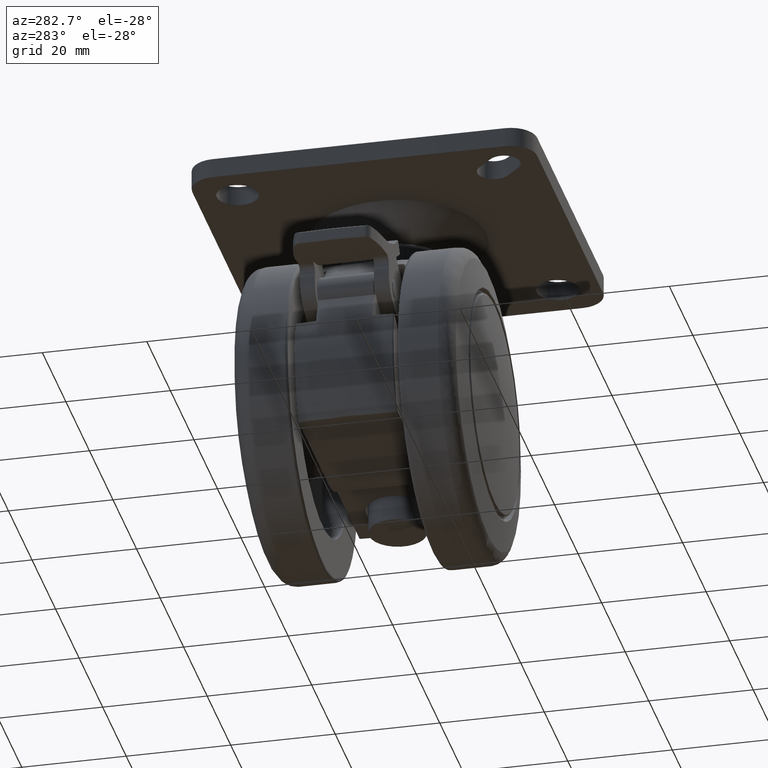
[diagram: clean part render]
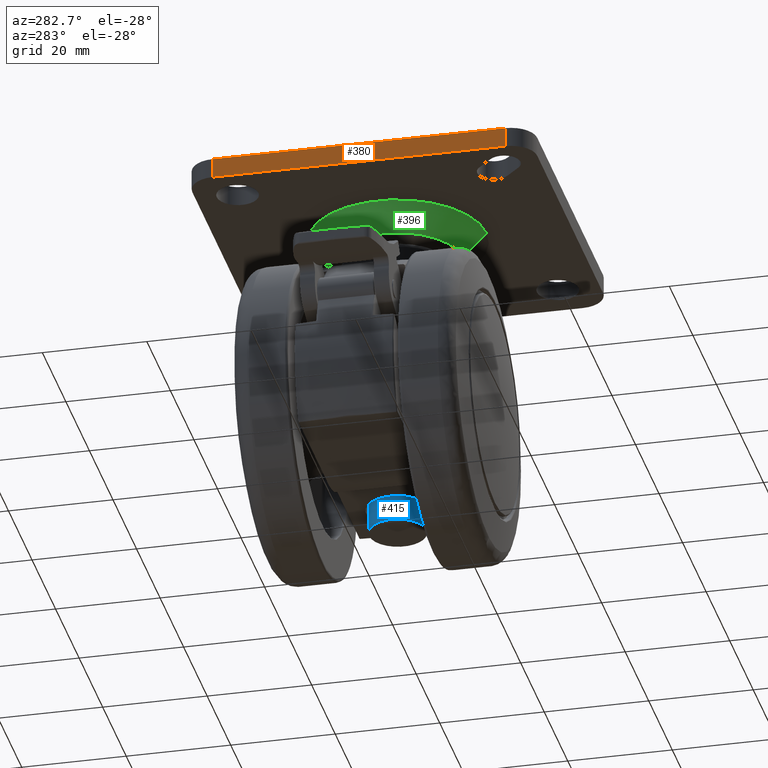
[diagram: same view with three faces highlighted in distinct colors, each labeled with its STEP entity id]
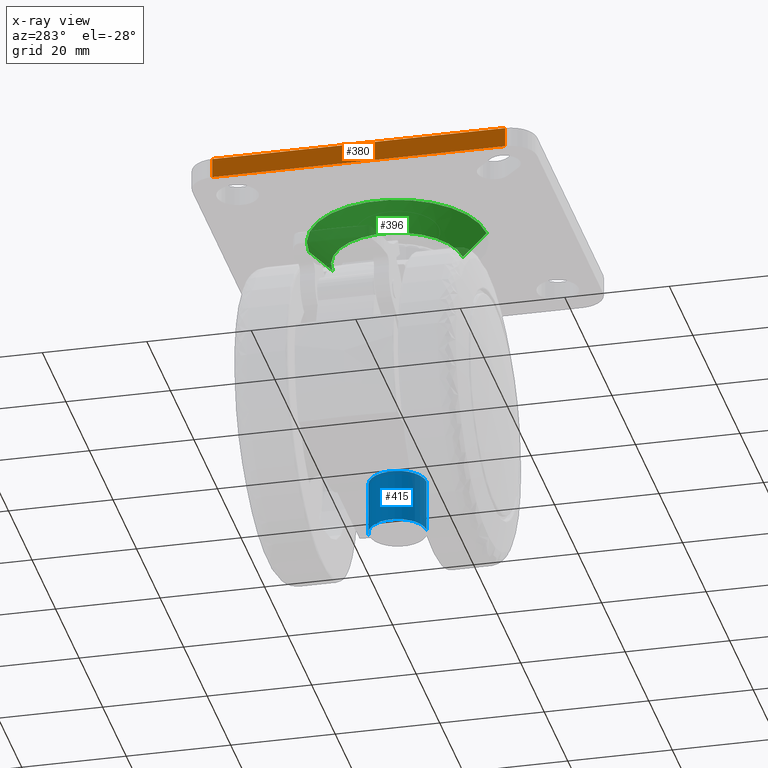
[diagram: x-ray of the same camera — body ghosted, the three highlighted faces saturated]
A machine part, auxiliary view with three faces highlighted in distinct colors.
The next image is the same camera in x-ray (body ghosted, the three faces saturated) — at least one of them is partly hidden behind the body in this view.
Their STEP definitions:

[orange] entity #380 — the highlighted planar face has unit normal (1, 0, 0).
#380=ADVANCED_FACE('',(#2306),#2305,.F.);
#2305=PLANE('',#6974);
#2306=FACE_OUTER_BOUND('',#6975,.T.);
#6971=CARTESIAN_POINT('',(-3.30000000000E+01,-3.80000000000E-01,3.36000000000E+01));
#6972=DIRECTION('',(1.00000000000E+00,-3.30514048027E-30,7.88931209923E-16));
#6973=DIRECTION('',(7.88931209923E-16,2.80045621353E-29,-1.00000000000E+00));
#6974=AXIS2_PLACEMENT_3D('',#6971,#6972,#6973);
#6975=EDGE_LOOP('',(#8307,#8308,#8309,#8310));
#8307=ORIENTED_EDGE('',*,*,#8929,.F.);
#8308=ORIENTED_EDGE('',*,*,#8949,.T.);
#8309=ORIENTED_EDGE('',*,*,#8911,.T.);
#8310=ORIENTED_EDGE('',*,*,#8950,.T.);
#8911=EDGE_CURVE('',#11928,#11921,#11929,.T.);
#8929=EDGE_CURVE('',#12047,#12054,#12055,.T.);
#8949=EDGE_CURVE('',#12047,#11928,#12189,.T.);
#8950=EDGE_CURVE('',#11921,#12054,#12195,.T.);
#11921=VERTEX_POINT('',#14942);
#11928=VERTEX_POINT('',#14947);
#11929=LINE('',#14948,#14949);
#12047=VERTEX_POINT('',#15027);
#12054=VERTEX_POINT('',#15032);
#12055=LINE('',#15033,#15034);
#12189=LINE('',#15119,#15120);
#12195=LINE('',#15122,#15123);
#14942=CARTESIAN_POINT('',(-3.30000000000E+01,0.00000000000E+00,2.80000000000E+01));
#14947=CARTESIAN_POINT('',(-3.30000000000E+01,0.00000000000E+00,-2.80000000000E+01));
#14948=CARTESIAN_POINT('',(-3.30000000000E+01,0.00000000000E+00,-2.80000000000E+01));
#14949=VECTOR('',#14950,5.60000000000E+01);
#14950=DIRECTION('',(2.53765262771E-16,0.00000000000E+00,1.00000000000E+00));
#15027=CARTESIAN_POINT('',(-3.30000000000E+01,3.80000000000E+00,-2.80000000000E+01));
#15032=CARTESIAN_POINT('',(-3.30000000000E+01,3.80000000000E+00,2.80000000000E+01));
#15033=CARTESIAN_POINT('',(-3.30000000000E+01,3.80000000000E+00,-2.80000000000E+01));
#15034=VECTOR('',#15035,5.60000000000E+01);
#15035=DIRECTION('',(2.53765262771E-16,0.00000000000E+00,1.00000000000E+00));
#15119=CARTESIAN_POINT('',(-3.30000000000E+01,3.80000000000E+00,-2.80000000000E+01));
#15120=VECTOR('',#15121,3.80000000000E+00);
#15121=DIRECTION('',(0.00000000000E+00,-1.00000000000E+00,1.12190958278E-14));
#15122=CARTESIAN_POINT('',(-3.30000000000E+01,0.00000000000E+00,2.80000000000E+01));
#15123=VECTOR('',#15124,3.80000000000E+00);
#15124=DIRECTION('',(0.00000000000E+00,1.00000000000E+00,-2.24381916556E-14));

[blue] entity #415 — the highlighted cylindrical surface (edge-blend (fillet) strip) has radius 5.5 mm, axis along (-0, -0, -1).
#415=ADVANCED_FACE('',(#2656),#2655,.T.);
#2655=CYLINDRICAL_SURFACE('',#7355,5.50000000000E+00);
#2656=FACE_OUTER_BOUND('',#7356,.T.);
#7352=CARTESIAN_POINT('',(-7.20214039754E-27,6.00999984741E+01,2.11055728315E-13));
#7353=DIRECTION('',(-6.79383115546E-30,1.00000000000E+00,3.49148133884E-15));
#7354=DIRECTION('',(-9.99200722163E-16,-3.49148133884E-15,1.00000000000E+00));
#7355=AXIS2_PLACEMENT_3D('',#7352,#7353,#7354);
#7356=EDGE_LOOP('',(#8443,#8444,#8445,#8446));
#8443=ORIENTED_EDGE('',*,*,#8998,.F.);
#8444=ORIENTED_EDGE('',*,*,#8995,.T.);
#8445=ORIENTED_EDGE('',*,*,#8960,.T.);
#8446=ORIENTED_EDGE('',*,*,#8997,.F.);
#8960=EDGE_CURVE('',#12252,#12251,#12259,.T.);
#8995=EDGE_CURVE('',#12481,#12252,#12482,.T.);
#8997=EDGE_CURVE('',#12488,#12251,#12495,.T.);
#8998=EDGE_CURVE('',#12481,#12488,#12501,.T.);
#12251=VERTEX_POINT('',#15153);
#12252=VERTEX_POINT('',#15154);
#12259=CIRCLE('',#15162,5.50000000000E+00);
#12481=VERTEX_POINT('',#15285);
#12482=(BOUNDED_CURVE() B_SPLINE_CURVE(1,(#15286,#15287),.UNSPECIFIED.,.F.,.F.) B_SPLINE_CURVE_WITH_KNOTS((2,2),(8.33333343261E-02,9.16666667006E-01),.UNSPECIFIED.) CURVE() GEOMETRIC_REPRESENTATION_ITEM() RATIONAL_B_SPLINE_CURVE((1.00000000000E+00,1.00000000000E+00)) REPRESENTATION_ITEM('') );
#12488=VERTEX_POINT('',#15288);
#12495=(BOUNDED_CURVE() B_SPLINE_CURVE(1,(#15293,#15294),.UNSPECIFIED.,.F.,.F.) B_SPLINE_CURVE_WITH_KNOTS((2,2),(8.33333333333E-02,9.16666666667E-01),.UNSPECIFIED.) CURVE() GEOMETRIC_REPRESENTATION_ITEM() RATIONAL_B_SPLINE_CURVE((7.50000000000E-01,7.50000000000E-01)) REPRESENTATION_ITEM('') );
#12501=CIRCLE('',#15298,5.50000000000E+00);
#15153=CARTESIAN_POINT('',(5.62512999143E-15,6.52000000000E+01,-5.50000000000E+00));
#15154=CARTESIAN_POINT('',(-4.82207047729E-15,6.52000000000E+01,5.50000000000E+00));
#15159=CARTESIAN_POINT('',(0.00000000000E+00,6.52000000000E+01,2.28983498829E-13));
#15160=DIRECTION('',(5.88686707918E-30,-1.00000000000E+00,-2.58379176640E-15));
#15161=DIRECTION('',(-9.99200722163E-16,-2.58379176640E-15,1.00000000000E+00));
#15162=AXIS2_PLACEMENT_3D('',#15159,#15160,#15161);
#15285=CARTESIAN_POINT('',(-5.03301104497E-15,5.50000000000E+01,5.50000000000E+00));
#15286=CARTESIAN_POINT('',(-5.49560397190E-15,5.50000000122E+01,5.50000000000E+00));
#15287=CARTESIAN_POINT('',(-5.49560397190E-15,6.52000000042E+01,5.50000000000E+00));
#15288=CARTESIAN_POINT('',(5.49560397189E-15,5.50000000000E+01,-5.50000000000E+00));
#15293=CARTESIAN_POINT('',(5.32907051820E-15,5.50000000000E+01,-5.50000000000E+00));
#15294=CARTESIAN_POINT('',(5.32907051820E-15,6.52000000000E+01,-5.50000000000E+00));
#15295=CARTESIAN_POINT('',(0.00000000000E+00,5.50000000000E+01,2.15105711021E-13));
#15296=DIRECTION('',(7.17773037863E-30,-1.00000000000E+00,-3.87568764960E-15));
#15297=DIRECTION('',(8.76740086780E-16,3.87568764960E-15,-1.00000000000E+00));
#15298=AXIS2_PLACEMENT_3D('',#15295,#15296,#15297);

[green] entity #396 — the highlighted face is a freeform B-spline surface patch.
#396=ADVANCED_FACE('',(#2466),#2465,.T.);
#2465=( BOUNDED_SURFACE() B_SPLINE_SURFACE( 2,1,((#7105,#7106),(#7107,#7108),(#7109,#7110),(#7111,#7112),(#7113,#7114)), .UNSPECIFIED.,.F.,.F.,.F.) B_SPLINE_SURFACE_WITH_KNOTS((3,2,3),(2,2),(0.00000000000E+00,5.00000000000E-01,1.00000000000E+00),(0.00000000000E+00,1.00000000000E+00), .UNSPECIFIED. ) GEOMETRIC_REPRESENTATION_ITEM() RATIONAL_B_SPLINE_SURFACE(((1.00000000000E+00,1.00000000000E+00),(7.07106781187E-01,7.07106781187E-01),(1.00000000000E+00,1.00000000000E+00),(7.07106781187E-01,7.07106781187E-01),(1.00000000000E+00,1.00000000000E+00))) REPRESENTATION_ITEM('') SURFACE() );
#2466=FACE_OUTER_BOUND('',#7115,.T.);
#7105=CARTESIAN_POINT('',(-1.54944095797E-14,8.34598911806E+00,1.24540108819E+01));
#7106=CARTESIAN_POINT('',(-2.11502113939E-14,3.80000000000E+00,1.70000000000E+01));
#7107=CARTESIAN_POINT('',(-1.24540108819E+01,8.34598911806E+00,1.24540108819E+01));
#7108=CARTESIAN_POINT('',(-1.70000000000E+01,3.80000000000E+00,1.70000000000E+01));
#7109=CARTESIAN_POINT('',(-1.24540108819E+01,8.34598911806E+00,1.50182026286E-14));
#7110=CARTESIAN_POINT('',(-1.70000000000E+01,3.80000000000E+00,-6.23147380678E-15));
#7111=CARTESIAN_POINT('',(-1.24540108819E+01,8.34598911806E+00,-1.24540108819E+01));
#7112=CARTESIAN_POINT('',(-1.70000000000E+01,3.80000000000E+00,-1.70000000000E+01));
#7113=CARTESIAN_POINT('',(1.39692331234E-14,8.34598911806E+00,-1.24540108819E+01));
#7114=CARTESIAN_POINT('',(1.90683118353E-14,3.80000000000E+00,-1.70000000000E+01));
#7115=EDGE_LOOP('',(#8367,#8368,#8369,#8370));
#8367=ORIENTED_EDGE('',*,*,#8944,.T.);
#8368=ORIENTED_EDGE('',*,*,#8967,.F.);
#8369=ORIENTED_EDGE('',*,*,#8968,.T.);
#8370=ORIENTED_EDGE('',*,*,#8969,.T.);
#8944=EDGE_CURVE('',#12152,#12151,#12159,.T.);
#8967=EDGE_CURVE('',#12303,#12151,#12304,.T.);
#8968=EDGE_CURVE('',#12303,#12310,#12311,.T.);
#8969=EDGE_CURVE('',#12310,#12152,#12317,.T.);
#12151=VERTEX_POINT('',#15097);
#12152=VERTEX_POINT('',#15098);
#12159=CIRCLE('',#15106,1.70000000000E+01);
#12303=VERTEX_POINT('',#15187);
#12304=(BOUNDED_CURVE() B_SPLINE_CURVE(1,(#15188,#15189),.UNSPECIFIED.,.F.,.F.) B_SPLINE_CURVE_WITH_KNOTS((2,2),(0.00000000000E+00,1.00000000000E+00),.UNSPECIFIED.) CURVE() GEOMETRIC_REPRESENTATION_ITEM() RATIONAL_B_SPLINE_CURVE((1.00000000000E+00,1.00000000000E+00)) REPRESENTATION_ITEM('') );
#12310=VERTEX_POINT('',#15190);
#12311=CIRCLE('',#15194,1.24540108819E+01);
#12317=(BOUNDED_CURVE() B_SPLINE_CURVE(1,(#15195,#15196),.UNSPECIFIED.,.F.,.F.) B_SPLINE_CURVE_WITH_KNOTS((2,2),(0.00000000000E+00,1.00000000000E+00),.UNSPECIFIED.) CURVE() GEOMETRIC_REPRESENTATION_ITEM() RATIONAL_B_SPLINE_CURVE((7.50000000000E-01,7.50000000000E-01)) REPRESENTATION_ITEM('') );
#15097=CARTESIAN_POINT('',(-2.30926389122E-14,3.80000000000E+00,1.70000000000E+01));
#15098=CARTESIAN_POINT('',(1.69863435197E-14,3.80000000000E+00,-1.70000000000E+01));
#15103=CARTESIAN_POINT('',(0.00000000000E+00,3.80000000000E+00,7.63278329430E-14));
#15104=DIRECTION('',(-3.30514048027E-30,1.00000000000E+00,-2.89773578375E-45));
#15105=DIRECTION('',(8.76736042248E-16,-0.00000000000E+00,-1.00000000000E+00));
#15106=AXIS2_PLACEMENT_3D('',#15103,#15104,#15105);
#15187=CARTESIAN_POINT('',(-1.09189305814E-14,8.34598911806E+00,1.24540108819E+01));
#15188=CARTESIAN_POINT('',(-1.54944095797E-14,8.34598911806E+00,1.24540108819E+01));
#15189=CARTESIAN_POINT('',(-2.11502113939E-14,3.80000000000E+00,1.70000000000E+01));
#15190=CARTESIAN_POINT('',(7.10542735760E-15,8.34598911806E+00,-1.24540108819E+01));
#15191=CARTESIAN_POINT('',(0.00000000000E+00,8.34598911806E+00,4.85722573274E-14));
#15192=DIRECTION('',(6.72560391858E-30,-1.00000000000E+00,-3.42319952582E-15));
#15193=DIRECTION('',(-9.99200722163E-16,-3.42319952582E-15,1.00000000000E+00));
#15194=AXIS2_PLACEMENT_3D('',#15191,#15192,#15193);
#15195=CARTESIAN_POINT('',(1.59872115546E-14,8.34598911806E+00,-1.24540108819E+01));
#15196=CARTESIAN_POINT('',(2.19084010193E-14,3.80000000000E+00,-1.70000000000E+01));